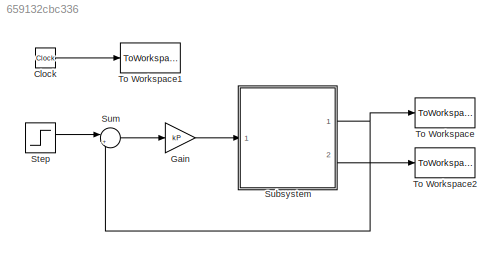
MODEL slx_659132cbc336
KIND model
BLOCK [Clock] Clock
BLOCK [Gain] Gain
  Gain = kP
BLOCK [Step] Step
  SampleTime = 0
  Time = 0
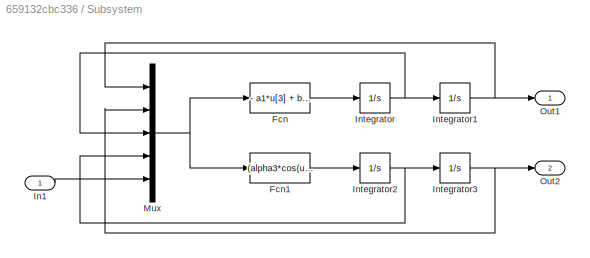
BLOCK [SubSystem] Subsystem
  FunctionWithSeparateData = off
  MaskHideContents = off
  MinAlgLoopOccurrences = off
  Opaque = off
  Ports = [1, 2]
  PropExecContextOutsideSubsystem = off
  RTWSystemCode = Auto
  RequestExecContextInheritance = off
BLOCK [Fcn] Subsystem/Fcn
  Expr = - a1*u[3] + b1*u[5]
BLOCK [Fcn] Subsystem/Fcn1
  Expr = (alpha3*cos(u[1] - u[2])*(- a1*u[3] + b1*u[5]) - alpha3*u[3]^2*sin(u[1] - u[2]) - alpha5*sin(u[2]) + mu2*u[3] - mu2*u[4])/alpha2
BLOCK [Inport] Subsystem/In1
  IconDisplay = Port number
BLOCK [Integrator] Subsystem/Integrator
  Ports = [1, 1]
BLOCK [Integrator] Subsystem/Integrator1
  Ports = [1, 1]
BLOCK [Integrator] Subsystem/Integrator2
  Ports = [1, 1]
BLOCK [Integrator] Subsystem/Integrator3
  Ports = [1, 1]
BLOCK [Mux] Subsystem/Mux
  DisplayOption = bar
  Inputs = 5
  Ports = [5, 1]
BLOCK [Outport] Subsystem/Out1
  IconDisplay = Port number
BLOCK [Outport] Subsystem/Out2
  IconDisplay = Port number
  Port = 2
BLOCK [Sum] Sum
  IconShape = round
  Inputs = |+-
  Ports = [2, 1]
BLOCK [ToWorkspace] To Workspace
  MaxDataPoints = inf
  Ports = [1]
  SampleTime = -1
  VariableName = phi1_sim
BLOCK [ToWorkspace] To Workspace1
  MaxDataPoints = inf
  Ports = [1]
  SampleTime = -1
  VariableName = t_sim
BLOCK [ToWorkspace] To Workspace2
  MaxDataPoints = inf
  Ports = [1]
  SampleTime = -1
  VariableName = phi2_sim
LINE Clock:1 -> To Workspace1:1
LINE Gain:1 -> Subsystem:1
LINE Step:1 -> Sum:1
LINE Subsystem/Fcn1:1 -> Subsystem/Integrator2:1
LINE Subsystem/Fcn:1 -> Subsystem/Integrator:1
LINE Subsystem/In1:1 -> Subsystem/Mux:5
NET Subsystem/Integrator1:1 -> Subsystem/Mux:1, Subsystem/Out1:1
NET Subsystem/Integrator2:1 -> Subsystem/Integrator3:1, Subsystem/Mux:4
NET Subsystem/Integrator3:1 -> Subsystem/Mux:2, Subsystem/Out2:1
NET Subsystem/Integrator:1 -> Subsystem/Integrator1:1, Subsystem/Mux:3
NET Subsystem/Mux:1 -> Subsystem/Fcn1:1, Subsystem/Fcn:1
NET Subsystem:1 -> Sum:2, To Workspace:1
LINE Subsystem:2 -> To Workspace2:1
LINE Sum:1 -> Gain:1
note: NET lines group one-source signal fan-out (src -> all destinations, sorted); 1:1 wires keep LINE
